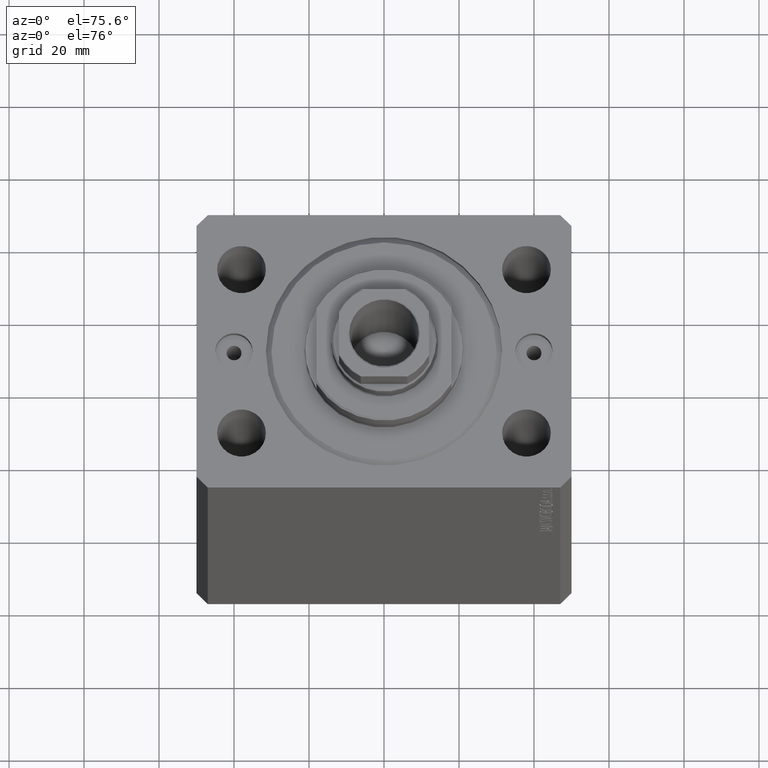
[diagram: clean part render]
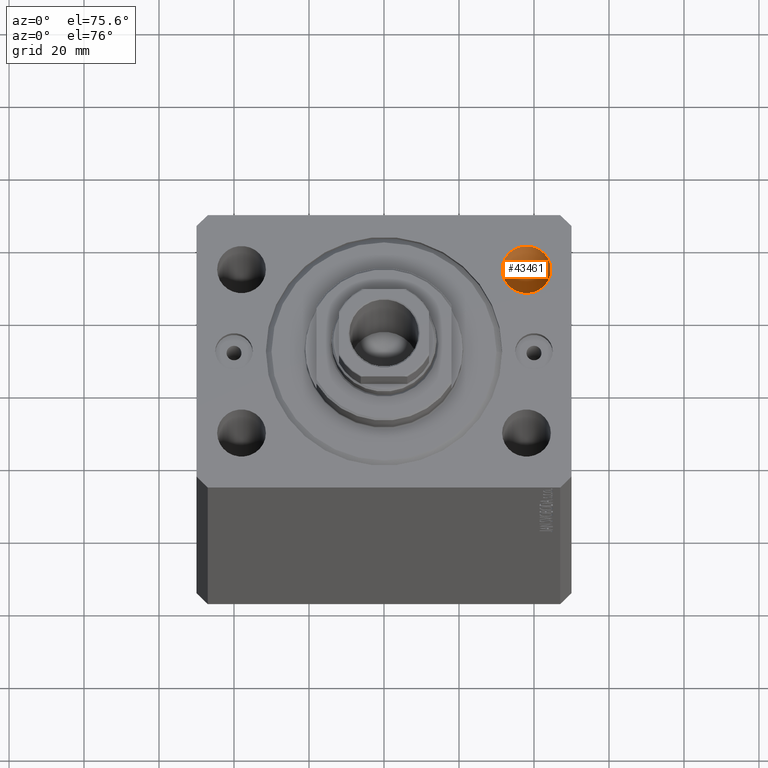
[diagram: same view with one face highlighted and labeled with its STEP entity id]
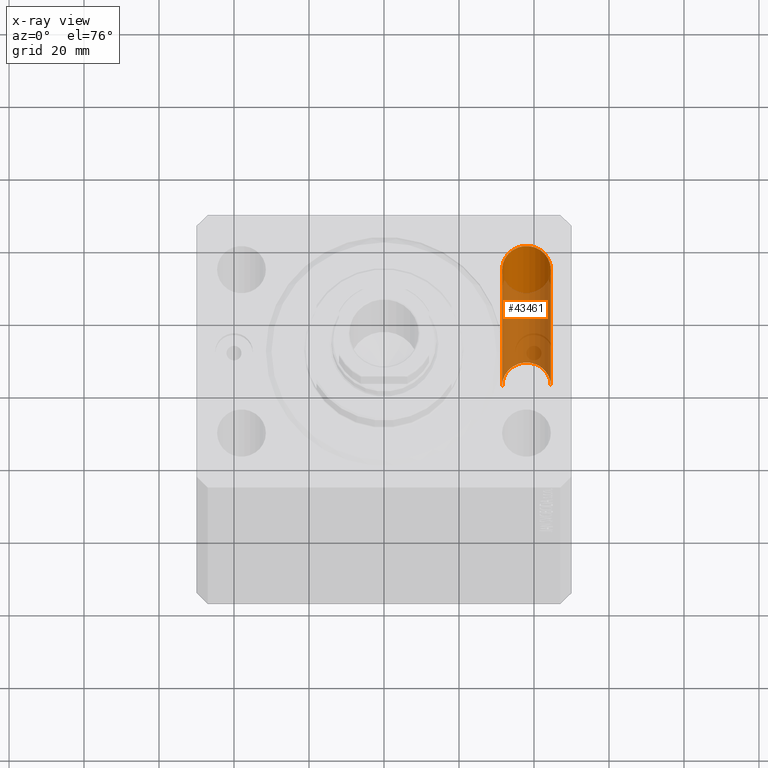
[diagram: x-ray of the same camera — body ghosted, the highlighted face saturated]
A machine part, auxiliary view. The second image highlights one B-rep face of the part: STEP entity #43461.
The next image is the same camera in x-ray: the body ghosted, the highlighted face saturated — about 68% of this face is hidden behind the body in this view.
In plain terms, the highlighted cylindrical surface (edge-blend (fillet) strip) has radius 6.5 mm, axis along (0, 0, 1).
Its self-contained STEP definition (entity closure, byte-faithful):
#609 = VECTOR ( 'NONE', #38046, 1000.000000000000000 ) ;
#910 = DIRECTION ( 'NONE',  ( -0.000000000000000000, -0.000000000000000000, 1.000000000000000000 ) ) ;
#1141 = LINE ( 'NONE', #22646, #9982 ) ;
#4433 = CARTESIAN_POINT ( 'NONE',  ( 38.00000000000000000, 22.49999999999998934, -125.0000000000000000 ) ) ;
#5296 = ORIENTED_EDGE ( 'NONE', *, *, #18997, .T. ) ;
#6488 = ORIENTED_EDGE ( 'NONE', *, *, #21827, .T. ) ;
#7875 = ORIENTED_EDGE ( 'NONE', *, *, #19327, .F. ) ;
#8198 = LINE ( 'NONE', #23482, #609 ) ;
#9177 = CARTESIAN_POINT ( 'NONE',  ( 44.50000000000000000, 22.49999999999998934, 0.000000000000000000 ) ) ;
#9454 = EDGE_LOOP ( 'NONE', ( #7875, #5296, #6488, #34786 ) ) ;
#9982 = VECTOR ( 'NONE', #910, 1000.000000000000000 ) ;
#14723 = CARTESIAN_POINT ( 'NONE',  ( 31.50000000000000000, 22.49999999999998934, 0.000000000000000000 ) ) ;
#16624 = CIRCLE ( 'NONE', #31906, 6.499999999999999112 ) ;
#18997 = EDGE_CURVE ( 'NONE', #41997, #44171, #16624, .T. ) ;
#19327 = EDGE_CURVE ( 'NONE', #41997, #19635, #8198, .T. ) ;
#19635 = VERTEX_POINT ( 'NONE', #14723 ) ;
#21827 = EDGE_CURVE ( 'NONE', #44171, #32210, #1141, .T. ) ;
#22646 = CARTESIAN_POINT ( 'NONE',  ( 44.50000000000000000, 22.49999999999998934, -143.3847763108502136 ) ) ;
#23482 = CARTESIAN_POINT ( 'NONE',  ( 31.50000000000000000, 22.49999999999998934, -143.3847763108502136 ) ) ;
#25546 = CARTESIAN_POINT ( 'NONE',  ( 38.00000000000000000, 22.49999999999998934, 0.000000000000000000 ) ) ;
#26340 = AXIS2_PLACEMENT_3D ( 'NONE', #25546, #47039, #29592 ) ;
#26625 = CARTESIAN_POINT ( 'NONE',  ( 44.50000000000000000, 22.49999999999998934, -125.0000000000000000 ) ) ;
#27117 = DIRECTION ( 'NONE',  ( -0.000000000000000000, -0.000000000000000000, -1.000000000000000000 ) ) ;
#28204 = DIRECTION ( 'NONE',  ( -0.000000000000000000, -0.000000000000000000, 1.000000000000000000 ) ) ;
#29592 = DIRECTION ( 'NONE',  ( 1.000000000000000000, 0.000000000000000000, 0.000000000000000000 ) ) ;
#30656 = CARTESIAN_POINT ( 'NONE',  ( 38.00000000000000000, 22.49999999999998934, -143.3847763108502136 ) ) ;
#30886 = DIRECTION ( 'NONE',  ( 1.000000000000000000, 0.000000000000000000, 0.000000000000000000 ) ) ;
#31906 = AXIS2_PLACEMENT_3D ( 'NONE', #4433, #27117, #45502 ) ;
#32210 = VERTEX_POINT ( 'NONE', #9177 ) ;
#32248 = CYLINDRICAL_SURFACE ( 'NONE', #35710, 6.499999999999999112 ) ;
#32918 = EDGE_CURVE ( 'NONE', #32210, #19635, #34750, .T. ) ;
#34750 = CIRCLE ( 'NONE', #26340, 6.499999999999999112 ) ;
#34786 = ORIENTED_EDGE ( 'NONE', *, *, #32918, .T. ) ;
#35710 = AXIS2_PLACEMENT_3D ( 'NONE', #30656, #28204, #30886 ) ;
#38046 = DIRECTION ( 'NONE',  ( -0.000000000000000000, -0.000000000000000000, 1.000000000000000000 ) ) ;
#39116 = CARTESIAN_POINT ( 'NONE',  ( 31.50000000000000000, 22.49999999999998934, -125.0000000000000000 ) ) ;
#41997 = VERTEX_POINT ( 'NONE', #39116 ) ;
#43249 = FACE_OUTER_BOUND ( 'NONE', #9454, .T. ) ;
#43461 = ADVANCED_FACE ( 'NONE', ( #43249 ), #32248, .F. ) ;
#44171 = VERTEX_POINT ( 'NONE', #26625 ) ;
#45502 = DIRECTION ( 'NONE',  ( 1.000000000000000000, 0.000000000000000000, 0.000000000000000000 ) ) ;
#47039 = DIRECTION ( 'NONE',  ( 0.000000000000000000, 0.000000000000000000, 1.000000000000000000 ) ) ;